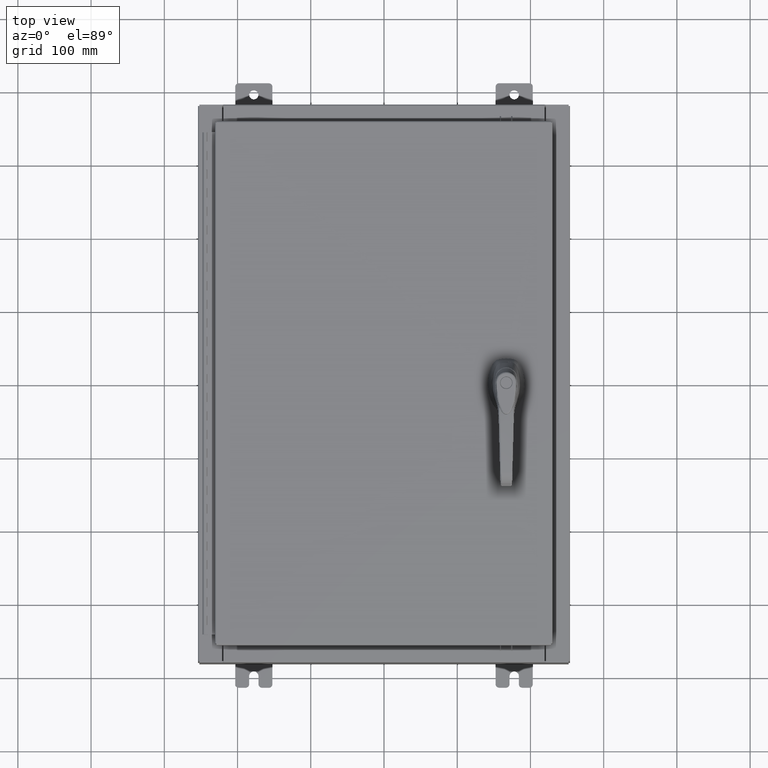
[diagram: clean part render]
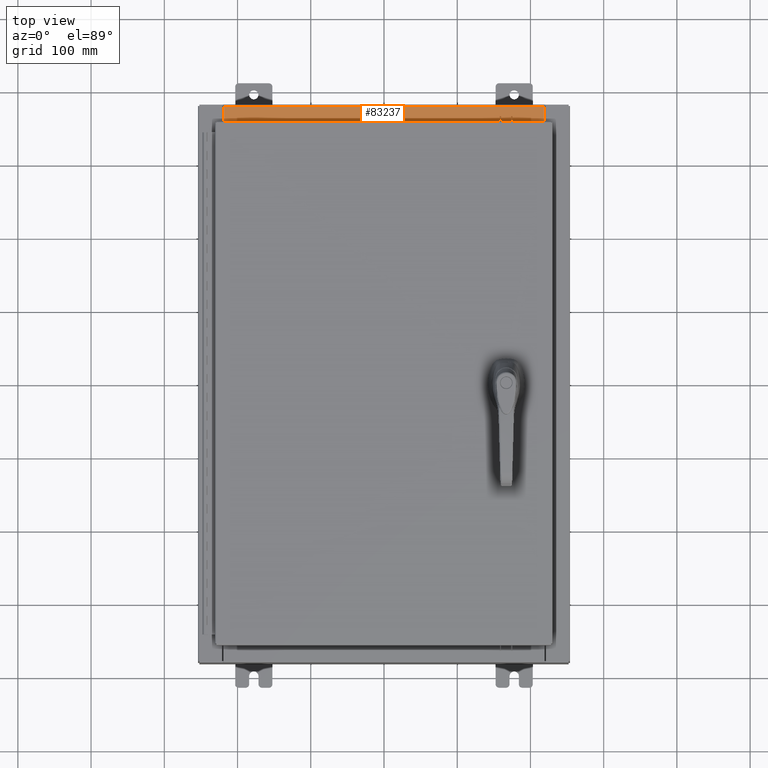
[diagram: same view with one face highlighted and labeled with its STEP entity id]
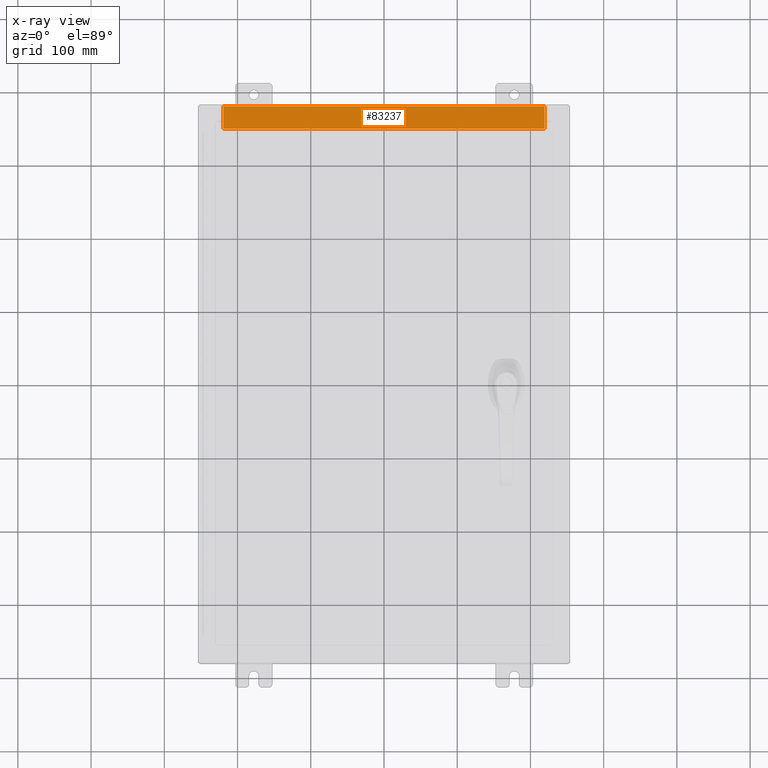
[diagram: x-ray of the same camera — body ghosted, the highlighted face saturated]
A machine part, top view. The second image highlights one B-rep face of the part: STEP entity #83237.
The next image is the same camera in x-ray: the body ghosted, the highlighted face saturated — about 0% of this face is hidden behind the body in this view.
In plain terms, the highlighted planar face has unit normal (0, 0, 1).
Its self-contained STEP definition (entity closure, byte-faithful):
#25 = VECTOR ( 'NONE', #43265, 39.37007874015748100 ) ;
#424 = CARTESIAN_POINT ( 'NONE',  ( -8.637200000000000000, -0.08770000000000000000, 3.000000000000000900 ) ) ;
#2869 = LINE ( 'NONE', #116494, #25 ) ;
#7041 = VERTEX_POINT ( 'NONE', #12888 ) ;
#10653 = CARTESIAN_POINT ( 'NONE',  ( 0.0000000000000000000, 1.069354855923099900E-014, 3.000000000000000900 ) ) ;
#12888 = CARTESIAN_POINT ( 'NONE',  ( -8.637200000000000000, -1.287299999999999200, 3.000000000000005300 ) ) ;
#14540 = CARTESIAN_POINT ( 'NONE',  ( 8.637200000000000000, -1.300299999999999800, 3.000000000000005300 ) ) ;
#17566 = EDGE_CURVE ( 'NONE', #99092, #7041, #88838, .T. ) ;
#18950 = CARTESIAN_POINT ( 'NONE',  ( 8.637200000000000000, -1.287299999999999900, 3.000000000000005300 ) ) ;
#19926 = VERTEX_POINT ( 'NONE', #51749 ) ;
#21206 = DIRECTION ( 'NONE',  ( -0.0000000000000000000, 1.000000000000000000, -3.566381192773190000E-015 ) ) ;
#22052 = AXIS2_PLACEMENT_3D ( 'NONE', #10653, #102268, #47409 ) ;
#29127 = CARTESIAN_POINT ( 'NONE',  ( 8.637200000000000000, -1.287299999999999900, 3.000000000000005300 ) ) ;
#30907 = ORIENTED_EDGE ( 'NONE', *, *, #17566, .F. ) ;
#36217 = EDGE_CURVE ( 'NONE', #19926, #43796, #2869, .T. ) ;
#40610 = ORIENTED_EDGE ( 'NONE', *, *, #117620, .F. ) ;
#41976 = LINE ( 'NONE', #48365, #84882 ) ;
#43265 = DIRECTION ( 'NONE',  ( -1.000000000000000000, 3.162886113166609200E-017, -1.128005754888089100E-031 ) ) ;
#43796 = VERTEX_POINT ( 'NONE', #424 ) ;
#47409 = DIRECTION ( 'NONE',  ( 0.0000000000000000000, -1.000000000000000000, 3.566381192773190000E-015 ) ) ;
#48365 = CARTESIAN_POINT ( 'NONE',  ( -8.637200000000000000, -0.07469999999999973900, 3.000000000000000900 ) ) ;
#49527 = EDGE_CURVE ( 'NONE', #19926, #99092, #110206, .T. ) ;
#51749 = CARTESIAN_POINT ( 'NONE',  ( 8.637200000000000000, -0.08769999999999965300, 3.000000000000000900 ) ) ;
#65417 = PLANE ( 'NONE',  #22052 ) ;
#69307 = DIRECTION ( 'NONE',  ( -0.0000000000000000000, -1.000000000000000000, 3.566381192773190000E-015 ) ) ;
#83237 = ADVANCED_FACE ( 'NONE', ( #97210 ), #65417, .T. ) ;
#84579 = ORIENTED_EDGE ( 'NONE', *, *, #36217, .T. ) ;
#84882 = VECTOR ( 'NONE', #21206, 39.37007874015748100 ) ;
#85835 = VECTOR ( 'NONE', #69307, 39.37007874015748100 ) ;
#88838 = LINE ( 'NONE', #18950, #91696 ) ;
#91696 = VECTOR ( 'NONE', #92147, 39.37007874015748100 ) ;
#92147 = DIRECTION ( 'NONE',  ( -1.000000000000000000, 0.0000000000000000000, 0.0000000000000000000 ) ) ;
#97210 = FACE_OUTER_BOUND ( 'NONE', #116139, .T. ) ;
#99092 = VERTEX_POINT ( 'NONE', #29127 ) ;
#102268 = DIRECTION ( 'NONE',  ( 0.0000000000000000000, 3.566381192773190000E-015, 1.000000000000000000 ) ) ;
#110206 = LINE ( 'NONE', #14540, #85835 ) ;
#116139 = EDGE_LOOP ( 'NONE', ( #40610, #30907, #116325, #84579 ) ) ;
#116325 = ORIENTED_EDGE ( 'NONE', *, *, #49527, .F. ) ;
#116494 = CARTESIAN_POINT ( 'NONE',  ( -2.773851121247453900E-018, -0.08770000000000000000, 3.000000000000001300 ) ) ;
#117620 = EDGE_CURVE ( 'NONE', #7041, #43796, #41976, .T. ) ;